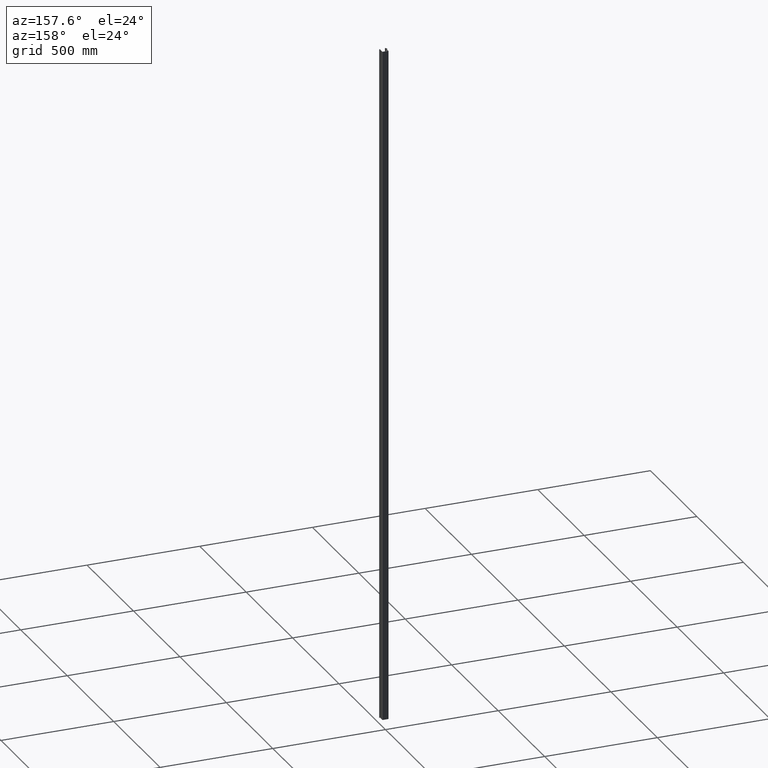
[diagram: clean part render]
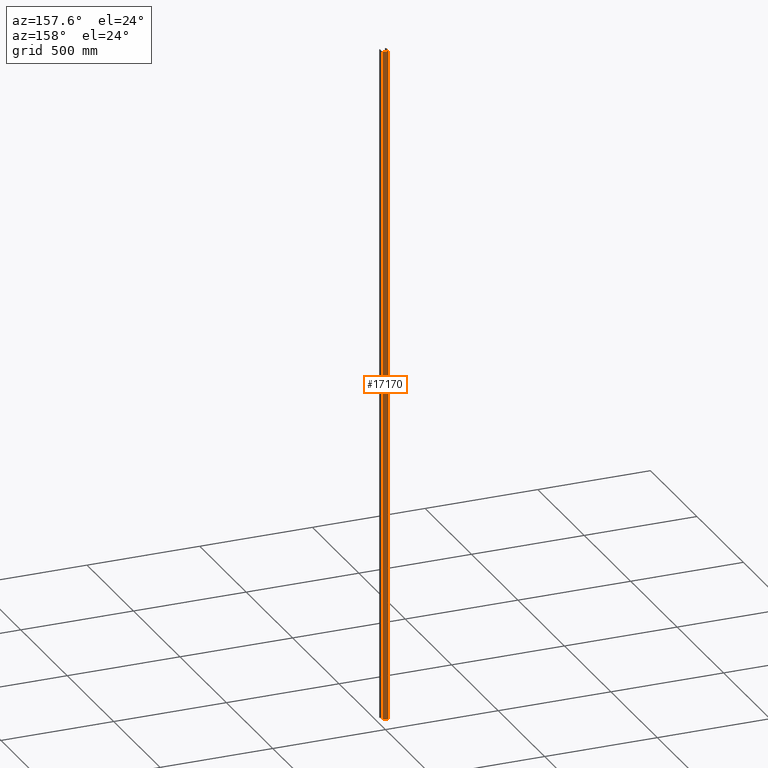
[diagram: same view with one face highlighted and labeled with its STEP entity id]
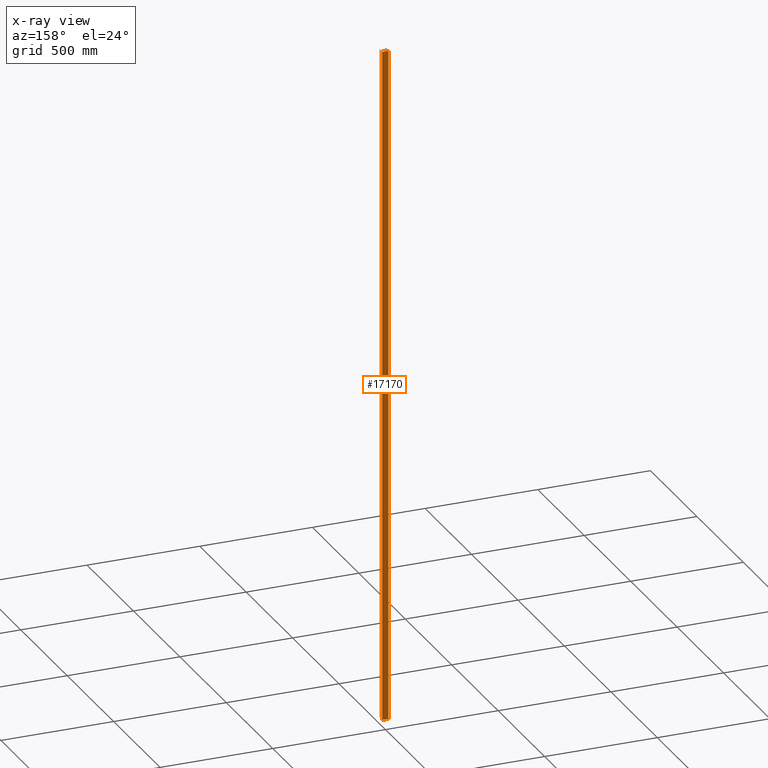
[diagram: x-ray of the same camera — body ghosted, the highlighted face saturated]
A machine part, auxiliary view. The second image highlights one B-rep face of the part: STEP entity #17170.
The next image is the same camera in x-ray: the body ghosted, the highlighted face saturated — about 0% of this face is hidden behind the body in this view.
In plain terms, the highlighted planar face has unit normal (0, -1, 0).
Its self-contained STEP definition (entity closure, byte-faithful):
#70 = VECTOR ( 'NONE', #8442, 1000.000000000000000 ) ;
#572 = VERTEX_POINT ( 'NONE', #3421 ) ;
#774 = LINE ( 'NONE', #12761, #70 ) ;
#901 = VECTOR ( 'NONE', #16644, 1000.000000000000000 ) ;
#3146 = ORIENTED_EDGE ( 'NONE', *, *, #7866, .F. ) ;
#3421 = CARTESIAN_POINT ( 'NONE',  ( -13.50000000000001954, -1.673737103774497470E-15, 1500.000000000000000 ) ) ;
#3574 = CARTESIAN_POINT ( 'NONE',  ( 13.50000000000001954, 1.633079522306291054E-15, -1500.000000000000000 ) ) ;
#5098 = CARTESIAN_POINT ( 'NONE',  ( -13.50000000000001954, -1.673737103774497470E-15, 1500.000000000000000 ) ) ;
#5620 = VERTEX_POINT ( 'NONE', #3574 ) ;
#5687 = CARTESIAN_POINT ( 'NONE',  ( 13.50000000000001954, 1.633079522306291054E-15, 1500.000000000000000 ) ) ;
#6344 = LINE ( 'NONE', #6391, #901 ) ;
#6391 = CARTESIAN_POINT ( 'NONE',  ( 13.50000000000001954, 1.633079522306291054E-15, 1500.000000000000000 ) ) ;
#6472 = EDGE_CURVE ( 'NONE', #18291, #5620, #16582, .T. ) ;
#7221 = CARTESIAN_POINT ( 'NONE',  ( -13.50000000000001954, -1.673737103774497470E-15, -1500.000000000000000 ) ) ;
#7236 = DIRECTION ( 'NONE',  ( -0.000000000000000000, -0.000000000000000000, -1.000000000000000000 ) ) ;
#7237 = VERTEX_POINT ( 'NONE', #7221 ) ;
#7690 = AXIS2_PLACEMENT_3D ( 'NONE', #9671, #9851, #18505 ) ;
#7866 = EDGE_CURVE ( 'NONE', #572, #7237, #16349, .T. ) ;
#8036 = PLANE ( 'NONE',  #7690 ) ;
#8392 = ORIENTED_EDGE ( 'NONE', *, *, #14514, .T. ) ;
#8442 = DIRECTION ( 'NONE',  ( -1.000000000000000000, -1.224746898548438642E-16, 0.000000000000000000 ) ) ;
#9671 = CARTESIAN_POINT ( 'NONE',  ( 13.50000000000001954, 1.633079522306291054E-15, 1500.000000000000000 ) ) ;
#9851 = DIRECTION ( 'NONE',  ( 1.224746898548438642E-16, -1.000000000000000000, 0.000000000000000000 ) ) ;
#10569 = EDGE_CURVE ( 'NONE', #18291, #572, #6344, .T. ) ;
#11092 = ORIENTED_EDGE ( 'NONE', *, *, #10569, .F. ) ;
#12489 = VECTOR ( 'NONE', #15426, 1000.000000000000000 ) ;
#12761 = CARTESIAN_POINT ( 'NONE',  ( 13.50000000000001954, 1.633079522306291054E-15, -1500.000000000000000 ) ) ;
#13714 = CARTESIAN_POINT ( 'NONE',  ( 13.50000000000001954, 1.633079522306291054E-15, 1500.000000000000000 ) ) ;
#14368 = EDGE_LOOP ( 'NONE', ( #8392, #3146, #11092, #15689 ) ) ;
#14514 = EDGE_CURVE ( 'NONE', #5620, #7237, #774, .T. ) ;
#15426 = DIRECTION ( 'NONE',  ( -0.000000000000000000, -0.000000000000000000, -1.000000000000000000 ) ) ;
#15689 = ORIENTED_EDGE ( 'NONE', *, *, #6472, .T. ) ;
#16349 = LINE ( 'NONE', #5098, #12489 ) ;
#16582 = LINE ( 'NONE', #5687, #17046 ) ;
#16644 = DIRECTION ( 'NONE',  ( -1.000000000000000000, -1.224746898548438642E-16, 0.000000000000000000 ) ) ;
#17046 = VECTOR ( 'NONE', #7236, 1000.000000000000000 ) ;
#17170 = ADVANCED_FACE ( 'NONE', ( #17655 ), #8036, .F. ) ;
#17655 = FACE_OUTER_BOUND ( 'NONE', #14368, .T. ) ;
#18291 = VERTEX_POINT ( 'NONE', #13714 ) ;
#18505 = DIRECTION ( 'NONE',  ( 1.000000000000000000, 1.224746898548438642E-16, 0.000000000000000000 ) ) ;